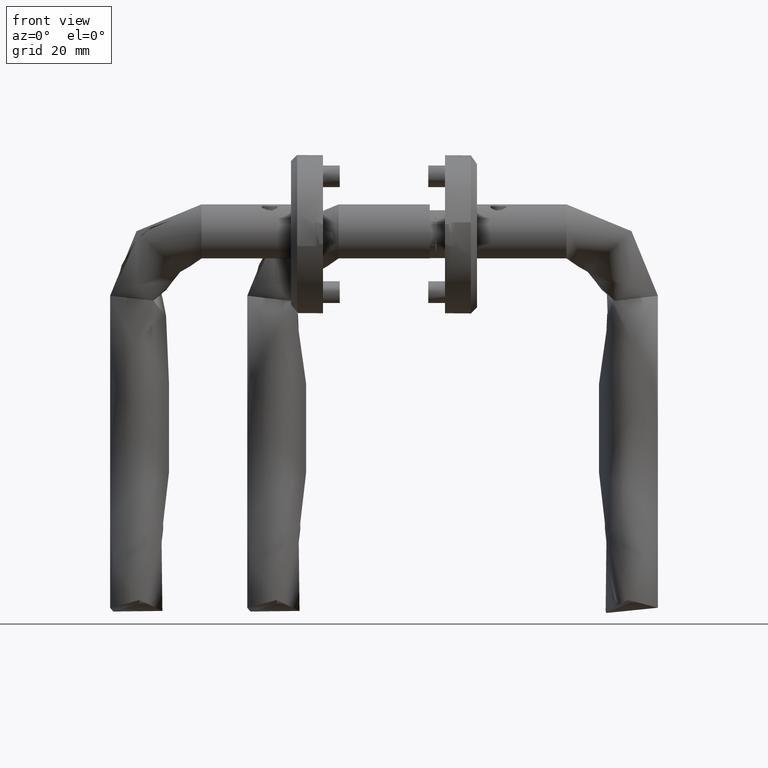
[diagram: clean part render]
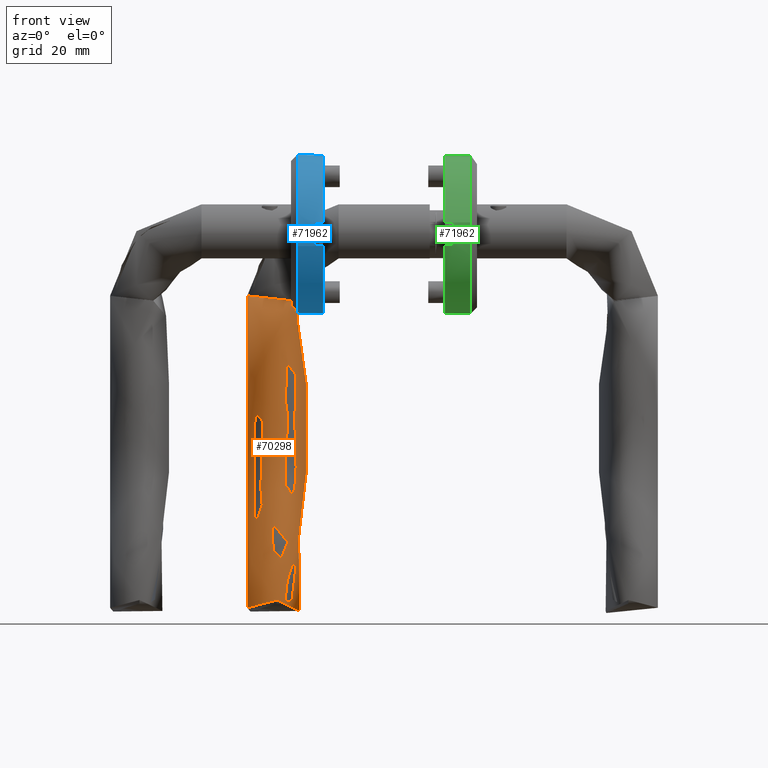
[diagram: same view with three faces highlighted in distinct colors, each labeled with its STEP entity id]
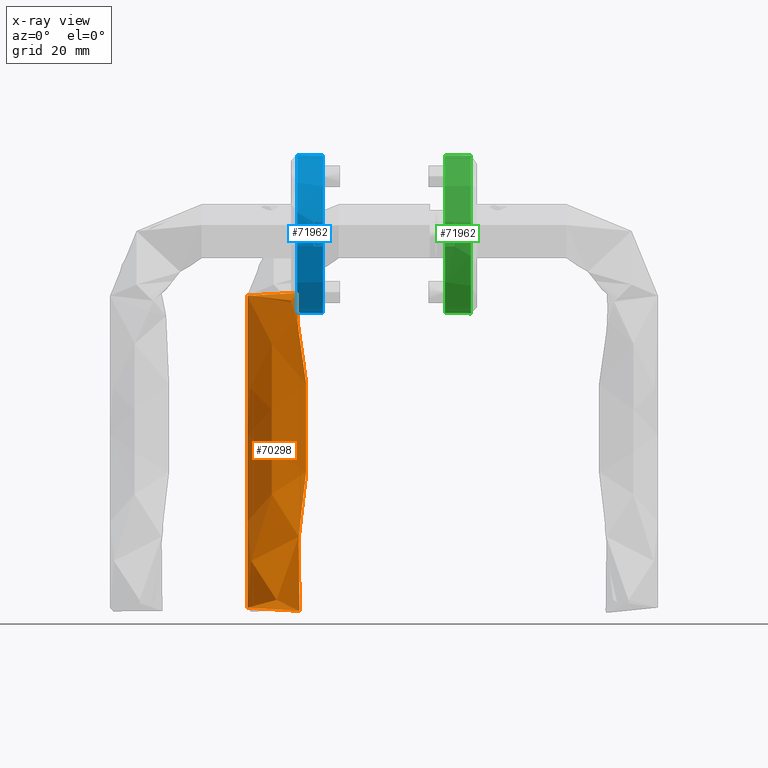
[diagram: x-ray of the same camera — body ghosted, the three highlighted faces saturated]
A machine part, front view with three faces highlighted in distinct colors.
The next image is the same camera in x-ray (body ghosted, the three faces saturated) — at least one of them is partly hidden behind the body in this view.
Their STEP definitions:

[orange] entity #70298 — the highlighted face is a freeform B-spline surface patch.
#175 = CARTESIAN_POINT ( 'NONE',  ( -131.2384101347341800, -3.285591277753895100, 41.02612459049775100 ) ) ;
#429 = CARTESIAN_POINT ( 'NONE',  ( -130.1568774822131000, -8.030855991505006800, 45.01970857402004400 ) ) ;
#668 = CARTESIAN_POINT ( 'NONE',  ( -133.0962367282932100, 4.864370429876893300, 41.69908462402612800 ) ) ;
#908 = CARTESIAN_POINT ( 'NONE',  ( -130.7383680727813300, -5.479584847947256400, 42.22835153656087900 ) ) ;
#1155 = CARTESIAN_POINT ( 'NONE',  ( -130.0529539978419400, -8.486480761938223000, 54.54668001188226600 ) ) ;
#1407 = CARTESIAN_POINT ( 'NONE',  ( -130.1203129283837500, -8.190936224721587800, 55.11308069512507800 ) ) ;
#2503 = CARTESIAN_POINT ( 'NONE',  ( -29.99999999999999300, 4.999999999999994700, 59.86999999999995500 ) ) ;
#2989 = CARTESIAN_POINT ( 'NONE',  ( -128.1654776773233400, -20.44687631133844300, 43.75889924407479000 ) ) ;
#3091 = EDGE_LOOP ( 'NONE', ( #54460 ) ) ;
#3164 = CARTESIAN_POINT ( 'NONE',  ( -130.9161307731910400, -4.699257285749097500, 58.69425074901349900 ) ) ;
#3235 = CARTESIAN_POINT ( 'NONE',  ( -94.53751006228809200, 25.09948315004196200, 37.31445894170538900 ) ) ;
#3482 = CARTESIAN_POINT ( 'NONE',  ( -113.4511720405651700, -18.30929637891635400, 43.75889924407474800 ) ) ;
#3897 = FACE_OUTER_BOUND ( 'NONE', #48820, .T. ) ;
#4770 = CARTESIAN_POINT ( 'NONE',  ( -29.99999999999999300, 4.999999999999994700, 59.86999999999995500 ) ) ;
#5279 = CARTESIAN_POINT ( 'NONE',  ( -33.59849846205029400, -17.26691692299164100, 43.75889924407497500 ) ) ;
#5706 = CARTESIAN_POINT ( 'NONE',  ( -133.6456218789485300, 7.273292456848918300, 43.72868011516223400 ) ) ;
#5958 = CARTESIAN_POINT ( 'NONE',  ( -133.3326342734361000, 5.901012082016529300, 42.40986106143002100 ) ) ;
#6201 = CARTESIAN_POINT ( 'NONE',  ( -129.9441295844369500, -8.964198660493897500, 47.04029178249702200 ) ) ;
#6679 = CARTESIAN_POINT ( 'NONE',  ( -133.8548510386319500, 8.190474471463405200, 45.02383370823658700 ) ) ;
#6922 = CARTESIAN_POINT ( 'NONE',  ( -134.0436563318655800, 9.017541253789612900, 53.66371357090821400 ) ) ;
#7177 = CARTESIAN_POINT ( 'NONE',  ( -129.8432498912765100, -9.406618674766125600, 51.49778971459254300 ) ) ;
#7701 = CARTESIAN_POINT ( 'NONE',  ( -129.8288618905339100, -9.469791354680873900, 50.20334903401215600 ) ) ;
#8280 = CARTESIAN_POINT ( 'NONE',  ( -118.3789552518631300, 3.689872914725582700, 59.86999999999994100 ) ) ;
#8455 = CARTESIAN_POINT ( 'NONE',  ( -133.1555304549449900, 5.123795646921471400, 58.52998163895939900 ) ) ;
#8526 = CARTESIAN_POINT ( 'NONE',  ( -33.20030030758993400, -14.06661661540167400, 63.09222015118500300 ) ) ;
#11747 = CARTESIAN_POINT ( 'NONE',  ( -134.1825756984857800, 9.626590060968347000, 50.85764132344493800 ) ) ;
#12222 = CARTESIAN_POINT ( 'NONE',  ( -129.8288659896706700, -9.469798167612273300, 49.55634970103395200 ) ) ;
#12468 = CARTESIAN_POINT ( 'NONE',  ( -134.1126339287166600, 9.320266395682184100, 47.65595747126279500 ) ) ;
#12705 = CARTESIAN_POINT ( 'NONE',  ( -131.3050003853630300, -2.993139240332162400, 59.50450371803798800 ) ) ;
#12862 = VERTEX_POINT ( 'NONE', #7701 ) ;
#13558 = EDGE_CURVE ( 'NONE', #24453, #24453, #62619, .T. ) ;
#14231 = CARTESIAN_POINT ( 'NONE',  ( -133.6423120580449200, 7.258104725671452200, 56.67246260932325400 ) ) ;
#14302 = CARTESIAN_POINT ( 'NONE',  ( -93.42406875128062900, 5.713618309563590200, 40.53667909288983400 ) ) ;
#14472 = CARTESIAN_POINT ( 'NONE',  ( -133.0936802192554200, 4.852582642246657600, 58.69670337336208400 ) ) ;
#14781 = CARTESIAN_POINT ( 'NONE',  ( -58.27455997581246500, 25.02861949945526000, 37.31445894170509800 ) ) ;
#15030 = CARTESIAN_POINT ( 'NONE',  ( -39.88341996943824300, 2.848117676803880300, 40.53667909288993300 ) ) ;
#17018 = CARTESIAN_POINT ( 'NONE',  ( -134.1687538873116500, 9.566148120893146300, 48.92332233290124300 ) ) ;
#17261 = CARTESIAN_POINT ( 'NONE',  ( -131.3062850583372100, -2.987784052902630300, 40.91682200729130900 ) ) ;
#18003 = CARTESIAN_POINT ( 'NONE',  ( -130.5170806847575300, -6.450498469067229100, 43.04530375048778300 ) ) ;
#18244 = CARTESIAN_POINT ( 'NONE',  ( -133.7334012602302900, 7.657444559284971100, 56.17336995887159600 ) ) ;
#18499 = CARTESIAN_POINT ( 'NONE',  ( -132.2891068945657800, 1.323985860898445400, 59.94103028964028100 ) ) ;
#18683 = ORIENTED_EDGE ( 'NONE', *, *, #27756, .T. ) ;
#18747 = CARTESIAN_POINT ( 'NONE',  ( -132.8396055758304000, 3.738405937506519300, 59.27181861653288300 ) ) ;
#19339 = CARTESIAN_POINT ( 'NONE',  ( -42.59616492696049800, -13.02430365523843400, 63.09222015118497500 ) ) ;
#19845 = CARTESIAN_POINT ( 'NONE',  ( -59.66790423857745700, -10.50351425468296500, 63.09222015118476900 ) ) ;
#20085 = CARTESIAN_POINT ( 'NONE',  ( -132.6264968110462500, -1.635268044476822800, 40.53667909288991200 ) ) ;
#21050 = CARTESIAN_POINT ( 'NONE',  ( -137.0875159447691100, 17.17634022238478800, 37.31445894170503400 ) ) ;
#22781 = CARTESIAN_POINT ( 'NONE',  ( -131.7209126581159600, -1.168606781573664500, 40.46632066405418700 ) ) ;
#23044 = CARTESIAN_POINT ( 'NONE',  ( -131.4432045907655300, -2.387042729178905400, 40.73021477067185000 ) ) ;
#23290 = CARTESIAN_POINT ( 'NONE',  ( -130.3665709749103900, -7.110859524183796400, 43.72255394895238100 ) ) ;
#23772 = CARTESIAN_POINT ( 'NONE',  ( -132.9712092730745200, 4.316055573401685700, 41.39775010264688900 ) ) ;
#24021 = CARTESIAN_POINT ( 'NONE',  ( -130.5684251436664200, -6.224815691181331300, 57.59267092387266700 ) ) ;
#24268 = CARTESIAN_POINT ( 'NONE',  ( -131.7210926662485200, -1.167696739236408200, 59.92483773081217200 ) ) ;
#24453 = VERTEX_POINT ( 'NONE', #35800 ) ;
#24516 = CARTESIAN_POINT ( 'NONE',  ( -129.8989613985855600, -9.162152603583667300, 52.75239143565432400 ) ) ;
#24613 = CARTESIAN_POINT ( 'NONE',  ( -114.1946752295189500, -15.17402833443953900, 63.09222015118476900 ) ) ;
#25856 = CARTESIAN_POINT ( 'NONE',  ( -58.90836152546906800, 8.876593318818905200, 59.86999999999994800 ) ) ;
#26335 = CARTESIAN_POINT ( 'NONE',  ( -58.14881881236070200, 28.25670089232077200, 56.64777984881517600 ) ) ;
#27614 = B_SPLINE_CURVE_WITH_KNOTS ( 'NONE', 3,
 ( #68678, #12222, #40552, #29529, #57624, #6201, #29042, #46086, #57378, #429, #57869, #23290, #18003, #41042, #58112, #908, #63412, #40072, #175, #17261, #23044, #63156, #22781, #46338, #35275, #51862, #28797, #46581, #68923, #63655, #23772, #668, #5958, #69665, #5706, #34545, #6679, #62909, #46822, #28551, #69174, #12468, #17018, #40319, #11747, #34285, #57129, #74478, #45835, #6922, #47075, #52845, #53091, #18244, #14231, #58592, #71920, #30011, #8455, #14472, #69907, #18747, #35779, #65910, #58849, #18499, #58351, #54370, #64390, #24268, #35534, #47323, #12705, #60354, #41522, #3164, #31505, #70153, #24021, #41287, #64630, #52598, #1407, #1155, #64137, #31274, #24516, #7177, #54605, #48585 ),
 .UNSPECIFIED., .T., .F.,
 ( 4, 2, 2, 1, 2, 2, 2, 2, 2, 2, 2, 2, 2, 2, 2, 2, 2, 2, 2, 2, 2, 2, 2, 2, 2, 2, 2, 2, 2, 2, 2, 1, 2, 2, 2, 2, 2, 2, 2, 2, 2, 2, 2, 2, 2, 4 ),
 ( 0.0000000000000000000, 0.001927968745327891800, 0.002891953117991846800, 0.003855937490655802300, 0.004819921863319758100, 0.005783906235983712700, 0.007711874981311649600, 0.008675859353975615500, 0.009639843726639582200, 0.01156781247196750200, 0.01253179684463146800, 0.01349578121729543300, 0.01542374996262337000, 0.01735171870795130700, 0.01831570308061526400, 0.01927968745327922000, 0.02120765619860712600, 0.02313562494393502800, 0.02506359368926293700, 0.02602757806192689300, 0.02699156243459084600, 0.02891953117991878300, 0.03084749992524671300, 0.03277546867057464600, 0.03373945304323861700, 0.03470343741590258000, 0.03663140616123051300, 0.03759539053389448400, 0.03855937490655846100, 0.04048734365188640800, 0.04145132802455039200, 0.04241531239721436200, 0.04337929676987834600, 0.04434328114254232300, 0.04627124988787029900, 0.04723523426053428300, 0.04819921863319826000, 0.05012718737852619300, 0.05109117175119014300, 0.05205515612385409900, 0.05398312486918200500, 0.05591109361450991000, 0.05687507798717386000, 0.05783906235983781600, 0.05976703110516570800, 0.06169499985049359300 ),
 .UNSPECIFIED. ) ;
#27756 = EDGE_CURVE ( 'NONE', #12862, #12862, #27614, .T. ) ;
#28371 = CARTESIAN_POINT ( 'NONE',  ( -30.39819815446035600, 1.799699692410026600, 40.53667909288994800 ) ) ;
#28551 = CARTESIAN_POINT ( 'NONE',  ( -133.9895548344549400, 8.780885775080834700, 46.15754027165858300 ) ) ;
#28797 = CARTESIAN_POINT ( 'NONE',  ( -132.4998270259378600, 2.248497126618128000, 40.65442686813328500 ) ) ;
#29042 = CARTESIAN_POINT ( 'NONE',  ( -129.9921063224975300, -8.753730077516005200, 46.43905275557303700 ) ) ;
#29529 = CARTESIAN_POINT ( 'NONE',  ( -129.8850256747207700, -9.223471559580668000, 47.96827276319989900 ) ) ;
#30011 = CARTESIAN_POINT ( 'NONE',  ( -133.3340537028555300, 5.906592806140170500, 57.99298400972290300 ) ) ;
#31274 = CARTESIAN_POINT ( 'NONE',  ( -129.9401216006886600, -8.981550654974558500, 53.36288046457951100 ) ) ;
#31505 = CARTESIAN_POINT ( 'NONE',  ( -130.8551632515733200, -4.966750230449633800, 58.52955911648398100 ) ) ;
#32066 = CARTESIAN_POINT ( 'NONE',  ( -122.5632352742072400, 22.55377416389069400, 56.64777984881506300 ) ) ;
#34285 = CARTESIAN_POINT ( 'NONE',  ( -134.1683808563078300, 9.564334610133228100, 51.49377352719840000 ) ) ;
#34545 = CARTESIAN_POINT ( 'NONE',  ( -133.7356697933664100, 7.668047936975151300, 44.22185518748999300 ) ) ;
#35275 = CARTESIAN_POINT ( 'NONE',  ( -132.1492702286618100, 0.7106904715384040300, 40.40350593326795100 ) ) ;
#35534 = CARTESIAN_POINT ( 'NONE',  ( -131.6500001148792200, -1.479578454037878200, 59.87724895204128500 ) ) ;
#35779 = CARTESIAN_POINT ( 'NONE',  ( -132.7059887951559500, 3.152413209858404100, 59.48726976777603400 ) ) ;
#35800 = CARTESIAN_POINT ( 'NONE',  ( -29.99999999999999300, 4.999999999999994700, 59.86999999999995500 ) ) ;
#36116 = CARTESIAN_POINT ( 'NONE',  ( -42.99436308142085700, -16.22460396282840000, 43.75889924407494600 ) ) ;
#37589 = CARTESIAN_POINT ( 'NONE',  ( -26.79969969241005500, 24.06661661540166400, 56.64777984881492000 ) ) ;
#37830 = CARTESIAN_POINT ( 'NONE',  ( -133.3700000000000000, 1.499999999999988200, 59.86999999999994800 ) ) ;
#38323 = CARTESIAN_POINT ( 'NONE',  ( -94.87174736077369600, 28.31430676102823100, 56.64777984881549600 ) ) ;
#40072 = CARTESIAN_POINT ( 'NONE',  ( -131.0409665746428200, -4.151895956083550700, 41.39428350438969800 ) ) ;
#40319 = CARTESIAN_POINT ( 'NONE',  ( -134.1827671704589600, 9.627519135535429500, 49.56380858974586100 ) ) ;
#40552 = CARTESIAN_POINT ( 'NONE',  ( -129.8429616221982600, -9.407982284805275000, 48.91673400183056200 ) ) ;
#41042 = CARTESIAN_POINT ( 'NONE',  ( -130.5698128588733200, -6.219134072154918000, 42.83003812462871500 ) ) ;
#41287 = CARTESIAN_POINT ( 'NONE',  ( -130.3652867621463300, -7.116095213056524000, 56.67862476340985700 ) ) ;
#41522 = CARTESIAN_POINT ( 'NONE',  ( -131.0422015858678700, -4.146130553948341700, 58.99771780735228100 ) ) ;
#42615 = CARTESIAN_POINT ( 'NONE',  ( -39.57457901058519700, 6.054523008624461700, 59.86999999999994100 ) ) ;
#42858 = CARTESIAN_POINT ( 'NONE',  ( -133.3700000000000000, 1.499999999999988200, 59.86999999999994800 ) ) ;
#43097 = CARTESIAN_POINT ( 'NONE',  ( -30.39819815446035600, 1.799699692410026600, 40.53667909288994800 ) ) ;
#43338 = CARTESIAN_POINT ( 'NONE',  ( -39.57457901058519700, 6.054523008624461700, 59.86999999999994100 ) ) ;
#44891 = CARTESIAN_POINT ( 'NONE',  ( -33.20030030758993400, -14.06661661540167400, 63.09222015118499600 ) ) ;
#45835 = CARTESIAN_POINT ( 'NONE',  ( -134.0680119379325700, 9.124310187662024100, 53.35796994714790700 ) ) ;
#46086 = CARTESIAN_POINT ( 'NONE',  ( -130.0527902524224300, -8.487505251930970800, 45.86202387231193700 ) ) ;
#46338 = CARTESIAN_POINT ( 'NONE',  ( -131.8622021410151000, -0.5487194546815997700, 40.40317380663059100 ) ) ;
#46581 = CARTESIAN_POINT ( 'NONE',  ( -132.5687350954590300, 2.550761125859933600, 40.73206843101678500 ) ) ;
#46822 = CARTESIAN_POINT ( 'NONE',  ( -133.9592029083963200, 8.647859512611376000, 45.86860236039317600 ) ) ;
#47075 = CARTESIAN_POINT ( 'NONE',  ( -133.9616159908461300, 8.657898764999528000, 54.55307633359176800 ) ) ;
#47323 = CARTESIAN_POINT ( 'NONE',  ( -131.4406529352596600, -2.397998580015292500, 59.68957661939147400 ) ) ;
#48585 = CARTESIAN_POINT ( 'NONE',  ( -129.8288618905339100, -9.469791354680873900, 50.20334903401214900 ) ) ;
#48820 = EDGE_LOOP ( 'NONE', ( #18683 ) ) ;
#49382 = CARTESIAN_POINT ( 'NONE',  ( -122.0964711966322400, 19.36621313711037800, 37.31445894170502700 ) ) ;
#51862 = CARTESIAN_POINT ( 'NONE',  ( -132.2912538831099000, 1.333563116766338700, 40.46741343000866900 ) ) ;
#52598 = CARTESIAN_POINT ( 'NONE',  ( -130.1568799504262600, -8.030495165824103100, 55.38718249030225100 ) ) ;
#52845 = CARTESIAN_POINT ( 'NONE',  ( -133.8946960257291900, 8.364542411228184100, 55.11554173751459000 ) ) ;
#53091 = CARTESIAN_POINT ( 'NONE',  ( -133.7761350377225300, 7.844786811438046600, 55.91395699291866400 ) ) ;
#53441 = CARTESIAN_POINT ( 'NONE',  ( -59.69268226319335500, -13.73371667743427200, 43.75889924407469100 ) ) ;
#53685 = CARTESIAN_POINT ( 'NONE',  ( -58.90836152546906800, 8.876593318818905200, 59.86999999999994800 ) ) ;
#54370 = CARTESIAN_POINT ( 'NONE',  ( -131.9349348276882100, -0.2296055819344556800, 60.00343800180371500 ) ) ;
#54437 = CARTESIAN_POINT ( 'NONE',  ( -36.55299309420989600, 25.13334967248736600, 56.64777984881493500 ) ) ;
#54460 = ORIENTED_EDGE ( 'NONE', *, *, #13558, .F. ) ;
#54605 = CARTESIAN_POINT ( 'NONE',  ( -129.8288577913971600, -9.469784541749476100, 50.85034836699033900 ) ) ;
#54904 = CARTESIAN_POINT ( 'NONE',  ( -58.98362111950289200, 5.647451411010490800, 40.53667909288991200 ) ) ;
#55404 = CARTESIAN_POINT ( 'NONE',  ( -117.7738216185987300, 0.5284583790970185400, 40.53667909288989100 ) ) ;
#57129 = CARTESIAN_POINT ( 'NONE',  ( -134.1267936110879800, 9.382003376199605800, 52.43244804959170600 ) ) ;
#57378 = CARTESIAN_POINT ( 'NONE',  ( -130.1199068423258600, -8.193054405716440100, 45.29725110254655400 ) ) ;
#57624 = CARTESIAN_POINT ( 'NONE',  ( -129.9026110374818800, -9.146331230699564300, 47.65383472663565100 ) ) ;
#57869 = CARTESIAN_POINT ( 'NONE',  ( -130.2764066671463500, -7.506446727409814600, 44.21569095023154700 ) ) ;
#58112 = CARTESIAN_POINT ( 'NONE',  ( -130.6805515478977500, -5.733260472109401800, 42.42108813399384800 ) ) ;
#58351 = CARTESIAN_POINT ( 'NONE',  ( -132.1478664035152200, 0.7044496495298321300, 60.00314122693674800 ) ) ;
#58592 = CARTESIAN_POINT ( 'NONE',  ( -133.5943858555300200, 7.047988880663908200, 56.90997968926775000 ) ) ;
#58849 = CARTESIAN_POINT ( 'NONE',  ( -132.4998694841208600, 2.248408612093511800, 59.75244938540738100 ) ) ;
#58943 = CARTESIAN_POINT ( 'NONE',  ( -93.69867935709946500, 8.934806320868322200, 59.86999999999995500 ) ) ;
#60182 = CARTESIAN_POINT ( 'NONE',  ( -137.8310191337228600, 20.31160826686160100, 56.64777984881506300 ) ) ;
#60354 = CARTESIAN_POINT ( 'NONE',  ( -131.1074172411365500, -3.860003825474752800, 59.13648017956000300 ) ) ;
#60478 = FACE_OUTER_BOUND ( 'NONE', #3091, .T. ) ;
#60673 = CARTESIAN_POINT ( 'NONE',  ( -27.19789784687042200, 20.86631630781169700, 37.31445894170490600 ) ) ;
#62619 =( BOUNDED_CURVE ( )  B_SPLINE_CURVE ( 3, ( #73785, #44891, #5279, #28371, #74037, #62728, #4770 ),
 .UNSPECIFIED., .T., .F. ) 
 B_SPLINE_CURVE_WITH_KNOTS ( ( 4, 3, 4 ),
 ( 0.0000000000000000000, 0.5000000000000000000, 1.000000000000000000 ),
 .UNSPECIFIED. ) 
 CURVE ( )  GEOMETRIC_REPRESENTATION_ITEM ( )  RATIONAL_B_SPLINE_CURVE ( ( 1.000000000000000000, 0.3333333333333333700, 0.3333333333333333700, 1.000000000000000000, 0.3333333333333333700, 0.3333333333333333700, 1.000000000000000000 ) ) 
 REPRESENTATION_ITEM ( '' )  );
#62728 = CARTESIAN_POINT ( 'NONE',  ( -26.79969969241005500, 24.06661661540167100, 56.64777984881491300 ) ) ;
#62909 = CARTESIAN_POINT ( 'NONE',  ( -133.8919644456728700, 8.353151121582453000, 45.30243075045048300 ) ) ;
#63156 = CARTESIAN_POINT ( 'NONE',  ( -131.5122230097190400, -2.084223522049418500, 40.65269996531896600 ) ) ;
#63412 = CARTESIAN_POINT ( 'NONE',  ( -130.9159644616182700, -4.700360650380056300, 41.69490450074779600 ) ) ;
#63655 = CARTESIAN_POINT ( 'NONE',  ( -132.7732649350757300, 3.447881038261836600, 41.02810986500434600 ) ) ;
#64137 = CARTESIAN_POINT ( 'NONE',  ( -130.0220733150650900, -8.621973764991510700, 54.25307354093456500 ) ) ;
#64390 = CARTESIAN_POINT ( 'NONE',  ( -131.8637778304077400, -0.5417548350614540500, 59.98794721354427400 ) ) ;
#64630 = CARTESIAN_POINT ( 'NONE',  ( -130.2750669907807700, -7.511940250917963800, 56.18274858799094300 ) ) ;
#64726 = CARTESIAN_POINT ( 'NONE',  ( -128.9089808662771200, -17.31160826686163300, 63.09222015118483300 ) ) ;
#64973 = CARTESIAN_POINT ( 'NONE',  ( -92.31062744027315100, -13.67224653091477600, 43.75889924407429300 ) ) ;
#65729 = CARTESIAN_POINT ( 'NONE',  ( -92.52561135342523400, -10.44469411929157900, 63.09222015118442100 ) ) ;
#65910 = CARTESIAN_POINT ( 'NONE',  ( -132.5697124218310400, 2.554735029878662200, 59.67356992518323700 ) ) ;
#65981 = CARTESIAN_POINT ( 'NONE',  ( -118.3789552518631300, 3.689872914725582700, 59.86999999999994100 ) ) ;
#66223 = CARTESIAN_POINT ( 'NONE',  ( -36.77247685745562200, 21.92083931643616500, 37.31445894170490600 ) ) ;
#68678 = CARTESIAN_POINT ( 'NONE',  ( -129.8288618905339100, -9.469791354680873900, 50.20334903401214900 ) ) ;
#68923 = CARTESIAN_POINT ( 'NONE',  ( -132.7052949516816500, 3.149755327642380200, 40.91855513515701400 ) ) ;
#69174 = CARTESIAN_POINT ( 'NONE',  ( -134.0709871472998900, 9.137770209531204600, 47.04158802196815300 ) ) ;
#69665 = CARTESIAN_POINT ( 'NONE',  ( -133.4447006293623300, 6.392390675503302900, 42.82389818422169000 ) ) ;
#69907 = CARTESIAN_POINT ( 'NONE',  ( -132.9679749022626500, 4.301345164689386100, 58.99885701111582400 ) ) ;
#70153 = CARTESIAN_POINT ( 'NONE',  ( -130.6783135353684300, -5.742676379014302900, 57.99755096562266500 ) ) ;
#70298 = ADVANCED_FACE ( 'NONE', ( #3897, #60478 ), #72644, .F. ) ;
#70507 = CARTESIAN_POINT ( 'NONE',  ( -33.59849846205028700, -17.26691692299164100, 43.75889924407497500 ) ) ;
#71920 = CARTESIAN_POINT ( 'NONE',  ( -133.4436850050328200, 6.387273199756277700, 57.58756017474154700 ) ) ;
#71987 = CARTESIAN_POINT ( 'NONE',  ( -93.69867935709946500, 8.934806320868322200, 59.86999999999995500 ) ) ;
#72238 = CARTESIAN_POINT ( 'NONE',  ( -29.99999999999999300, 4.999999999999994700, 59.86999999999995500 ) ) ;
#72644 =( BOUNDED_SURFACE ( )  B_SPLINE_SURFACE ( 3, 3, ( 
 ( #2503, #42615, #53685, #58943, #8280, #42858 ),
 ( #8526, #19339, #19845, #65729, #24613, #64726 ),
 ( #70507, #36116, #53441, #64973, #3482, #2989 ),
 ( #43097, #15030, #54904, #14302, #55404, #20085 ),
 ( #60673, #66223, #14781, #3235, #49382, #21050 ),
 ( #37589, #54437, #26335, #38323, #32066, #60182 ),
 ( #72238, #43338, #25856, #71987, #65981, #37830 ) ),
 .UNSPECIFIED., .T., .F., .F. ) 
 B_SPLINE_SURFACE_WITH_KNOTS ( ( 4, 3, 4 ),
 ( 4, 1, 1, 4 ),
 ( 0.0000000000000000000, 0.5000000000000000000, 1.000000000000000000 ),
 ( 0.0000000000000000000, 0.2795415856831526800, 0.5604373090770911100, 1.000000000000000000 ),
 .UNSPECIFIED. ) 
 GEOMETRIC_REPRESENTATION_ITEM ( )  RATIONAL_B_SPLINE_SURFACE ( (
 ( 1.000000000000000000, 1.000000000000000000, 1.000000000000000200, 1.000000000000000000, 1.000000000000000000, 1.000000000000000000),
 ( 0.3333333333333333700, 0.3333333333333333700, 0.3333333333333333700, 0.3333333333333333700, 0.3333333333333334300, 0.3333333333333333700),
 ( 0.3333333333333333700, 0.3333333333333333700, 0.3333333333333333700, 0.3333333333333333700, 0.3333333333333334300, 0.3333333333333333700),
 ( 1.000000000000000000, 1.000000000000000000, 1.000000000000000200, 1.000000000000000000, 1.000000000000000000, 1.000000000000000000),
 ( 0.3333333333333333700, 0.3333333333333333700, 0.3333333333333333700, 0.3333333333333333700, 0.3333333333333334300, 0.3333333333333333700),
 ( 0.3333333333333333700, 0.3333333333333333700, 0.3333333333333333700, 0.3333333333333333700, 0.3333333333333334300, 0.3333333333333333700),
 ( 1.000000000000000000, 1.000000000000000000, 1.000000000000000200, 1.000000000000000000, 1.000000000000000000, 1.000000000000000000) ) ) 
 REPRESENTATION_ITEM ( '' )  SURFACE ( )  );
#73785 = CARTESIAN_POINT ( 'NONE',  ( -29.99999999999999300, 4.999999999999994700, 59.86999999999995500 ) ) ;
#74037 = CARTESIAN_POINT ( 'NONE',  ( -27.19789784687041800, 20.86631630781169700, 37.31445894170491300 ) ) ;
#74478 = CARTESIAN_POINT ( 'NONE',  ( -134.1095236428335800, 9.306291668350656500, 52.74273307124081400 ) ) ;

[blue] entity #71962 — the highlighted cylindrical surface (bore or boss wall) has radius 26 mm, axis along (1, 0, -0).
#108 = ORIENTED_EDGE ( 'NONE', *, *, #70612, .T. ) ;
#365 = VERTEX_POINT ( 'NONE', #47752 ) ;
#1152 = CARTESIAN_POINT ( 'NONE',  ( 3.899999999999998600, -25.70583591327074300, 10.50000000000000000 ) ) ;
#2425 = DIRECTION ( 'NONE',  ( 0.0000000000000000000, 0.0000000000000000000, 1.000000000000000000 ) ) ;
#3611 = AXIS2_PLACEMENT_3D ( 'NONE', #71658, #65636, #26248 ) ;
#4143 = VECTOR ( 'NONE', #67212, 1000.000000000000000 ) ;
#4670 = VECTOR ( 'NONE', #34544, 1000.000000000000000 ) ;
#4767 = FACE_OUTER_BOUND ( 'NONE', #10744, .T. ) ;
#6124 = DIRECTION ( 'NONE',  ( -1.000000000000000000, 0.0000000000000000000, 0.0000000000000000000 ) ) ;
#6355 = DIRECTION ( 'NONE',  ( -0.0000000000000000000, -0.0000000000000000000, -1.000000000000000000 ) ) ;
#9167 = CARTESIAN_POINT ( 'NONE',  ( 26.00000000000000400, 0.0000000000000000000, 8.500000000000000000 ) ) ;
#9306 = VERTEX_POINT ( 'NONE', #38257 ) ;
#10071 = LINE ( 'NONE', #1152, #4670 ) ;
#10213 = AXIS2_PLACEMENT_3D ( 'NONE', #60345, #2425, #37028 ) ;
#10744 = EDGE_LOOP ( 'NONE', ( #32246, #71228, #38581, #23627 ) ) ;
#11351 = CIRCLE ( 'NONE', #10213, 26.00000000000000400 ) ;
#11449 = CARTESIAN_POINT ( 'NONE',  ( 3.899999999999999900, -25.70583591327074300, 2.999999999999998200 ) ) ;
#13792 = CYLINDRICAL_SURFACE ( 'NONE', #39111, 26.00000000000000400 ) ;
#19441 = LINE ( 'NONE', #33573, #4143 ) ;
#23627 = ORIENTED_EDGE ( 'NONE', *, *, #32223, .T. ) ;
#25598 = EDGE_CURVE ( 'NONE', #9306, #66216, #11351, .T. ) ;
#26248 = DIRECTION ( 'NONE',  ( 1.000000000000000000, 0.0000000000000000000, 0.0000000000000000000 ) ) ;
#32223 = EDGE_CURVE ( 'NONE', #365, #54475, #68494, .T. ) ;
#32246 = ORIENTED_EDGE ( 'NONE', *, *, #38568, .T. ) ;
#33573 = CARTESIAN_POINT ( 'NONE',  ( -3.899999999999999900, -25.70583591327074300, 10.50000000000000000 ) ) ;
#33786 = EDGE_CURVE ( 'NONE', #66216, #365, #10071, .T. ) ;
#34286 = AXIS2_PLACEMENT_3D ( 'NONE', #44587, #67427, #56631 ) ;
#34544 = DIRECTION ( 'NONE',  ( -0.0000000000000000000, -0.0000000000000000000, -1.000000000000000000 ) ) ;
#37028 = DIRECTION ( 'NONE',  ( 1.000000000000000000, 0.0000000000000000000, 0.0000000000000000000 ) ) ;
#38257 = CARTESIAN_POINT ( 'NONE',  ( -3.899999999999999900, -25.70583591327074300, 2.999999999999998200 ) ) ;
#38568 = EDGE_CURVE ( 'NONE', #54475, #9306, #19441, .T. ) ;
#38581 = ORIENTED_EDGE ( 'NONE', *, *, #33786, .T. ) ;
#39111 = AXIS2_PLACEMENT_3D ( 'NONE', #58029, #6355, #6124 ) ;
#44587 = CARTESIAN_POINT ( 'NONE',  ( 0.0000000000000000000, 0.0000000000000000000, 8.500000000000000000 ) ) ;
#47752 = CARTESIAN_POINT ( 'NONE',  ( 3.900000000000000400, -25.70583591327074700, -1.734723475976807100E-015 ) ) ;
#47898 = CIRCLE ( 'NONE', #34286, 26.00000000000000400 ) ;
#52359 = FACE_OUTER_BOUND ( 'NONE', #65975, .T. ) ;
#54475 = VERTEX_POINT ( 'NONE', #73663 ) ;
#56631 = DIRECTION ( 'NONE',  ( 1.000000000000000000, 0.0000000000000000000, 0.0000000000000000000 ) ) ;
#58029 = CARTESIAN_POINT ( 'NONE',  ( 0.0000000000000000000, 0.0000000000000000000, 10.50000000000000000 ) ) ;
#60345 = CARTESIAN_POINT ( 'NONE',  ( 0.0000000000000000000, 0.0000000000000000000, 2.999999999999998200 ) ) ;
#65636 = DIRECTION ( 'NONE',  ( 0.0000000000000000000, 0.0000000000000000000, 1.000000000000000000 ) ) ;
#65975 = EDGE_LOOP ( 'NONE', ( #108 ) ) ;
#66216 = VERTEX_POINT ( 'NONE', #11449 ) ;
#67212 = DIRECTION ( 'NONE',  ( 0.0000000000000000000, 0.0000000000000000000, 1.000000000000000000 ) ) ;
#67427 = DIRECTION ( 'NONE',  ( -0.0000000000000000000, -0.0000000000000000000, -1.000000000000000000 ) ) ;
#67822 = VERTEX_POINT ( 'NONE', #9167 ) ;
#68494 = CIRCLE ( 'NONE', #3611, 26.00000000000000400 ) ;
#70612 = EDGE_CURVE ( 'NONE', #67822, #67822, #47898, .T. ) ;
#71228 = ORIENTED_EDGE ( 'NONE', *, *, #25598, .T. ) ;
#71658 = CARTESIAN_POINT ( 'NONE',  ( 0.0000000000000000000, 0.0000000000000000000, 0.0000000000000000000 ) ) ;
#71962 = ADVANCED_FACE ( 'NONE', ( #52359, #4767 ), #13792, .T. ) ;
#73663 = CARTESIAN_POINT ( 'NONE',  ( -3.899999999999999900, -25.70583591327074700, -1.283785409773493500E-015 ) ) ;

[green] entity #71962 — the highlighted cylindrical surface (bore or boss wall) has radius 26 mm, axis along (-1, 0, -0).
#108 = ORIENTED_EDGE ( 'NONE', *, *, #70612, .T. ) ;
#365 = VERTEX_POINT ( 'NONE', #47752 ) ;
#1152 = CARTESIAN_POINT ( 'NONE',  ( 3.899999999999998600, -25.70583591327074300, 10.50000000000000000 ) ) ;
#2425 = DIRECTION ( 'NONE',  ( 0.0000000000000000000, 0.0000000000000000000, 1.000000000000000000 ) ) ;
#3611 = AXIS2_PLACEMENT_3D ( 'NONE', #71658, #65636, #26248 ) ;
#4143 = VECTOR ( 'NONE', #67212, 1000.000000000000000 ) ;
#4670 = VECTOR ( 'NONE', #34544, 1000.000000000000000 ) ;
#4767 = FACE_OUTER_BOUND ( 'NONE', #10744, .T. ) ;
#6124 = DIRECTION ( 'NONE',  ( -1.000000000000000000, 0.0000000000000000000, 0.0000000000000000000 ) ) ;
#6355 = DIRECTION ( 'NONE',  ( -0.0000000000000000000, -0.0000000000000000000, -1.000000000000000000 ) ) ;
#9167 = CARTESIAN_POINT ( 'NONE',  ( 26.00000000000000400, 0.0000000000000000000, 8.500000000000000000 ) ) ;
#9306 = VERTEX_POINT ( 'NONE', #38257 ) ;
#10071 = LINE ( 'NONE', #1152, #4670 ) ;
#10213 = AXIS2_PLACEMENT_3D ( 'NONE', #60345, #2425, #37028 ) ;
#10744 = EDGE_LOOP ( 'NONE', ( #32246, #71228, #38581, #23627 ) ) ;
#11351 = CIRCLE ( 'NONE', #10213, 26.00000000000000400 ) ;
#11449 = CARTESIAN_POINT ( 'NONE',  ( 3.899999999999999900, -25.70583591327074300, 2.999999999999998200 ) ) ;
#13792 = CYLINDRICAL_SURFACE ( 'NONE', #39111, 26.00000000000000400 ) ;
#19441 = LINE ( 'NONE', #33573, #4143 ) ;
#23627 = ORIENTED_EDGE ( 'NONE', *, *, #32223, .T. ) ;
#25598 = EDGE_CURVE ( 'NONE', #9306, #66216, #11351, .T. ) ;
#26248 = DIRECTION ( 'NONE',  ( 1.000000000000000000, 0.0000000000000000000, 0.0000000000000000000 ) ) ;
#32223 = EDGE_CURVE ( 'NONE', #365, #54475, #68494, .T. ) ;
#32246 = ORIENTED_EDGE ( 'NONE', *, *, #38568, .T. ) ;
#33573 = CARTESIAN_POINT ( 'NONE',  ( -3.899999999999999900, -25.70583591327074300, 10.50000000000000000 ) ) ;
#33786 = EDGE_CURVE ( 'NONE', #66216, #365, #10071, .T. ) ;
#34286 = AXIS2_PLACEMENT_3D ( 'NONE', #44587, #67427, #56631 ) ;
#34544 = DIRECTION ( 'NONE',  ( -0.0000000000000000000, -0.0000000000000000000, -1.000000000000000000 ) ) ;
#37028 = DIRECTION ( 'NONE',  ( 1.000000000000000000, 0.0000000000000000000, 0.0000000000000000000 ) ) ;
#38257 = CARTESIAN_POINT ( 'NONE',  ( -3.899999999999999900, -25.70583591327074300, 2.999999999999998200 ) ) ;
#38568 = EDGE_CURVE ( 'NONE', #54475, #9306, #19441, .T. ) ;
#38581 = ORIENTED_EDGE ( 'NONE', *, *, #33786, .T. ) ;
#39111 = AXIS2_PLACEMENT_3D ( 'NONE', #58029, #6355, #6124 ) ;
#44587 = CARTESIAN_POINT ( 'NONE',  ( 0.0000000000000000000, 0.0000000000000000000, 8.500000000000000000 ) ) ;
#47752 = CARTESIAN_POINT ( 'NONE',  ( 3.900000000000000400, -25.70583591327074700, -1.734723475976807100E-015 ) ) ;
#47898 = CIRCLE ( 'NONE', #34286, 26.00000000000000400 ) ;
#52359 = FACE_OUTER_BOUND ( 'NONE', #65975, .T. ) ;
#54475 = VERTEX_POINT ( 'NONE', #73663 ) ;
#56631 = DIRECTION ( 'NONE',  ( 1.000000000000000000, 0.0000000000000000000, 0.0000000000000000000 ) ) ;
#58029 = CARTESIAN_POINT ( 'NONE',  ( 0.0000000000000000000, 0.0000000000000000000, 10.50000000000000000 ) ) ;
#60345 = CARTESIAN_POINT ( 'NONE',  ( 0.0000000000000000000, 0.0000000000000000000, 2.999999999999998200 ) ) ;
#65636 = DIRECTION ( 'NONE',  ( 0.0000000000000000000, 0.0000000000000000000, 1.000000000000000000 ) ) ;
#65975 = EDGE_LOOP ( 'NONE', ( #108 ) ) ;
#66216 = VERTEX_POINT ( 'NONE', #11449 ) ;
#67212 = DIRECTION ( 'NONE',  ( 0.0000000000000000000, 0.0000000000000000000, 1.000000000000000000 ) ) ;
#67427 = DIRECTION ( 'NONE',  ( -0.0000000000000000000, -0.0000000000000000000, -1.000000000000000000 ) ) ;
#67822 = VERTEX_POINT ( 'NONE', #9167 ) ;
#68494 = CIRCLE ( 'NONE', #3611, 26.00000000000000400 ) ;
#70612 = EDGE_CURVE ( 'NONE', #67822, #67822, #47898, .T. ) ;
#71228 = ORIENTED_EDGE ( 'NONE', *, *, #25598, .T. ) ;
#71658 = CARTESIAN_POINT ( 'NONE',  ( 0.0000000000000000000, 0.0000000000000000000, 0.0000000000000000000 ) ) ;
#71962 = ADVANCED_FACE ( 'NONE', ( #52359, #4767 ), #13792, .T. ) ;
#73663 = CARTESIAN_POINT ( 'NONE',  ( -3.899999999999999900, -25.70583591327074700, -1.283785409773493500E-015 ) ) ;